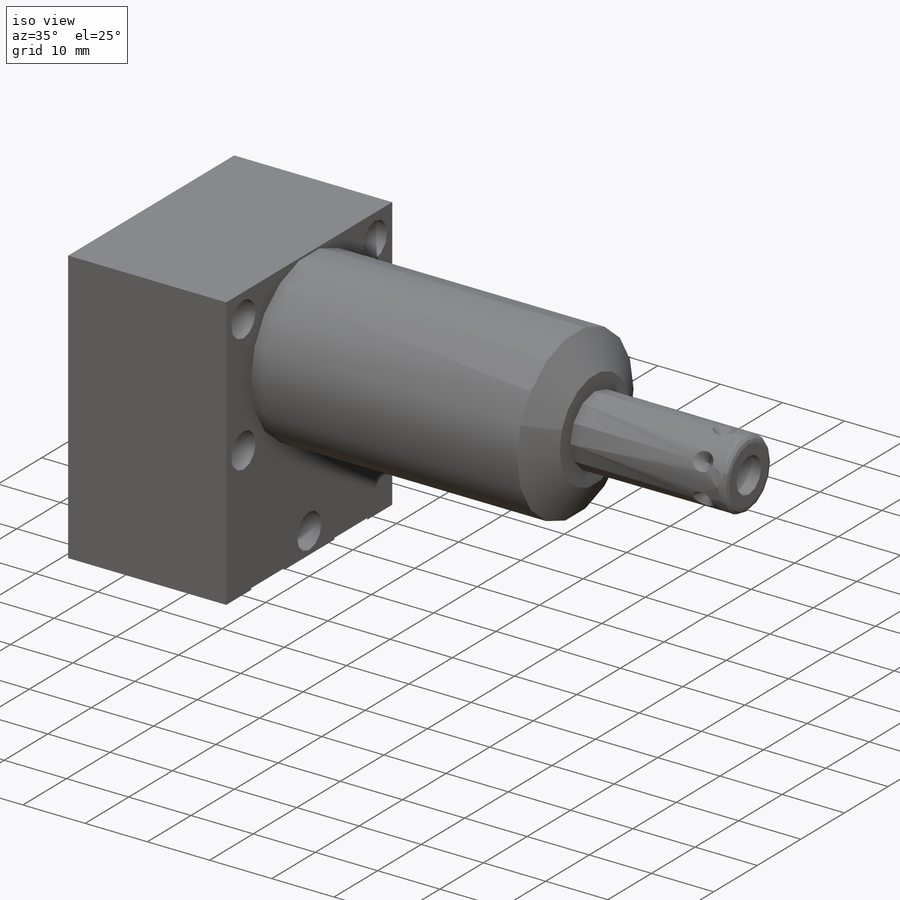
[diagram: iso view]
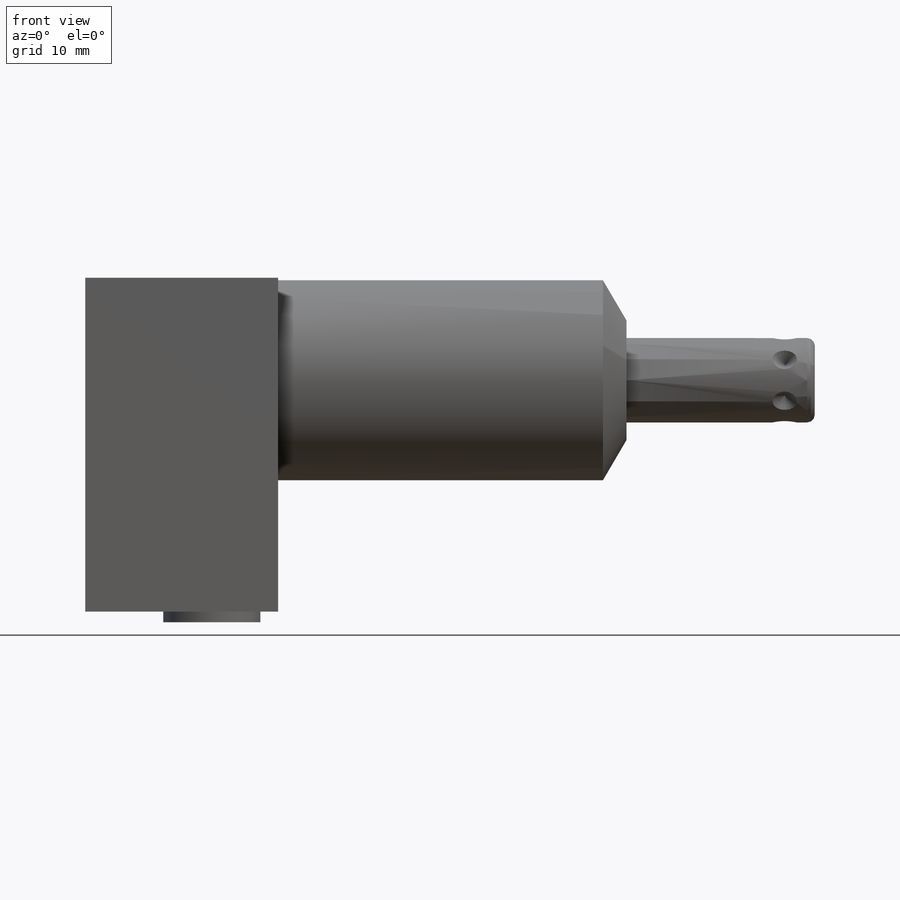
[diagram: front view]
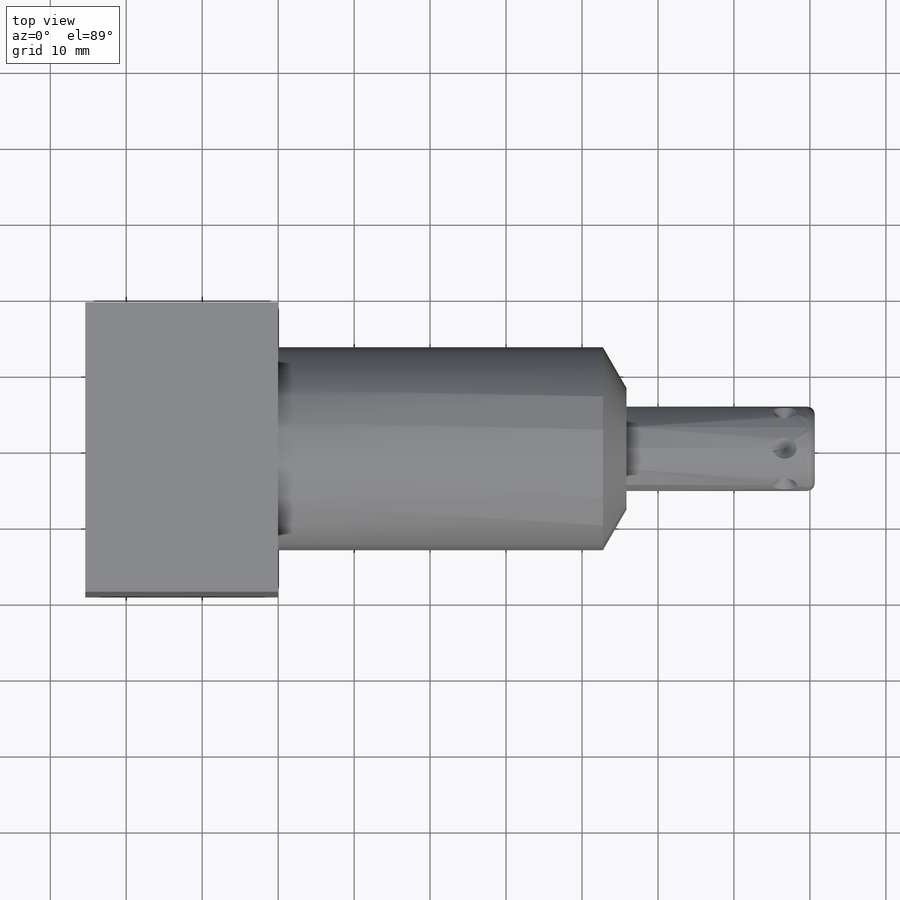
[diagram: top view]
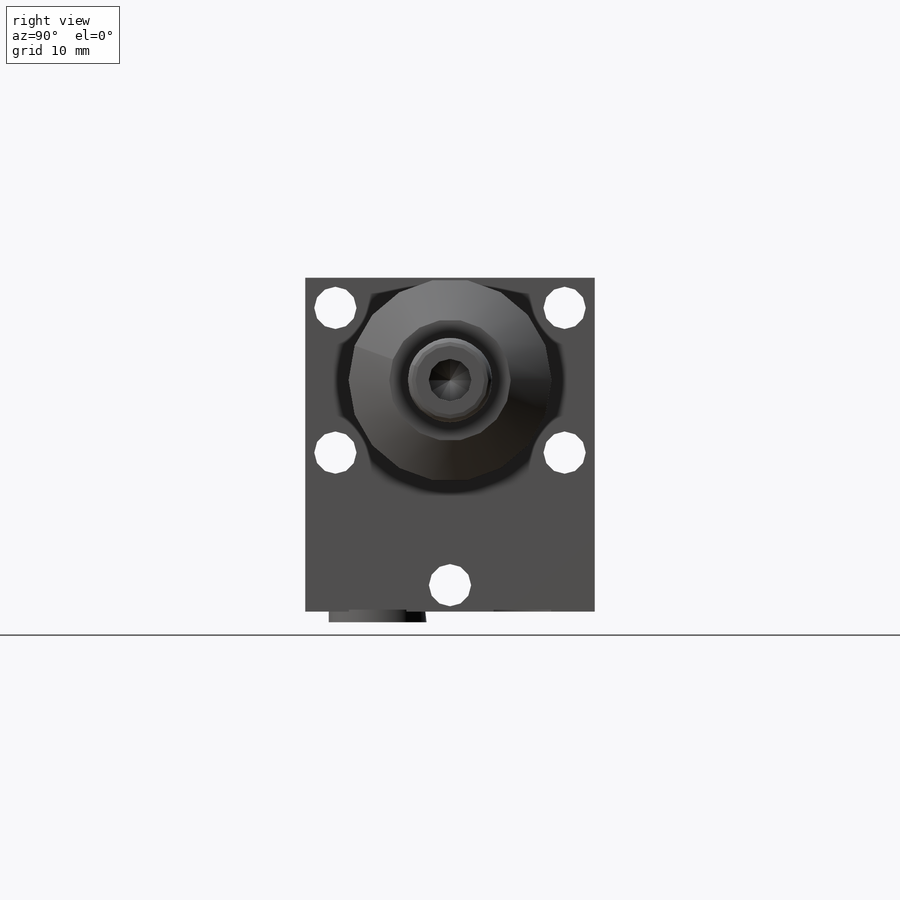
[diagram: right view]
SOLIDWORKS PART (.sldprt)
format: sldprt  version: not decoded by parser v0  size: 444,416 bytes
history: native  units: mm
features: sketch x15, plane x12, cut_revolve x7, extrude x3, cut_extrude x2, material x1, revolve x1, pattern_circular x1, hole x1 (+11 scaffold rows collapsed)
feature tree (54):
  scaffold x11  (default folders/planes/origin — collapsed)
  material  "Alloy Steel"
  plane  "Plane1"
  sketch  "Sketch1"  dims[D1=38.1mm D2=43.942mm D3=13.4874mm]
  extrude  "Extrude1"  Depth=45.847mm
  plane  "Plane2"
  sketch  "Sketch2"  dims[D1=26.7208mm D2=0.0mm]
  cut_extrude  "Cut-Extrude1"  [1 undecoded]
  plane  "Plane3"
  sketch  "Sketch3"  dims[c1.D1=~6.188502mm c2.D1=30.0deg c2.D2=16.002mm]
  cut_revolve  "Cut-Revolve1"  Angle=360deg
  plane  "Plane4"
  sketch  "S2D0002"  dims[D1=13.97mm D2=20.6502mm]
  cut_revolve  "Cut-Revolve2"  Angle=360deg
  plane  "Plane5"
  sketch  "Sketch5"  dims[D1=13.97mm D2=20.6502mm]
  cut_revolve  "Cut-Revolve3"  Angle=360deg
  plane  "Plane6"
  sketch  "Sketch14"  dims[D1=15.875mm]
  cut_extrude  "Cut-Extrude2"  Depth=2.667mm
  sketch  "Sketch6"  dims[D1=~19.04746mm D2=0.254mm D3=16.6624mm]
  cut_revolve  "Cut-Revolve4"  Angle=360deg
  plane  "Plane7"
  sketch  "Sketch7"  dims[D1=16.6624mm D2=9.9568mm D3=~19.04746mm]
  cut_revolve  "Cut-Revolve5"  Angle=360deg
  plane  "Plane8"
  sketch  "Sketch8"  dims[D3=1.016mm D1=96.0374mm D2=11.1125mm]
  revolve  "Revolve1"  Angle=360deg
  plane  "Plane9"
  sketch  "S2D0001"  dims[c1.D1=5.6134mm c1.D2=10.16mm c1.D3=~3.27439mm c2.D3=59.0deg]
  cut_revolve  "Cut-Revolve6"  Angle=360deg
  plane  "Plane10"
  sketch  "Sketch10"  dims[D1=12.8778mm]
  extrude  "Extrude2"  Depth=1.651mm
  sketch  "Sketch11"  dims[D1=9.6012mm D2=9.0932mm]
  plane  "Plane11"
  extrude  "Extrude3"  Depth=0mm
  plane  "Plane12"
  sketch  "Sketch12"  dims[c1.D1=3.9624mm c1.D2=1.5875mm c2.D2=45.0deg c2.D3=3.175mm]
  cut_revolve  "Cut-Revolve7"  Angle=360deg
  pattern_circular  "CirPattern1"  Count=6 Angle=360deg
  hole  "Hole1"  Diameter=5.5626mm Depth=25.4mm
  sketch  "Sketch17"  dims[D1=9.525mm D2=15.0876mm D3=26.9748mm]
  sketch  "Sketch16"  dims[Diameter=5.5626mm Depth=25.4mm]
decode coverage: 29 of 30 modeling features carry decoded parameters
note: ~ marks probable driven/reference dimensions
note: 1 parameter value undecoded
note: suppression state not decoded; provenance and decode notes live in map.json
